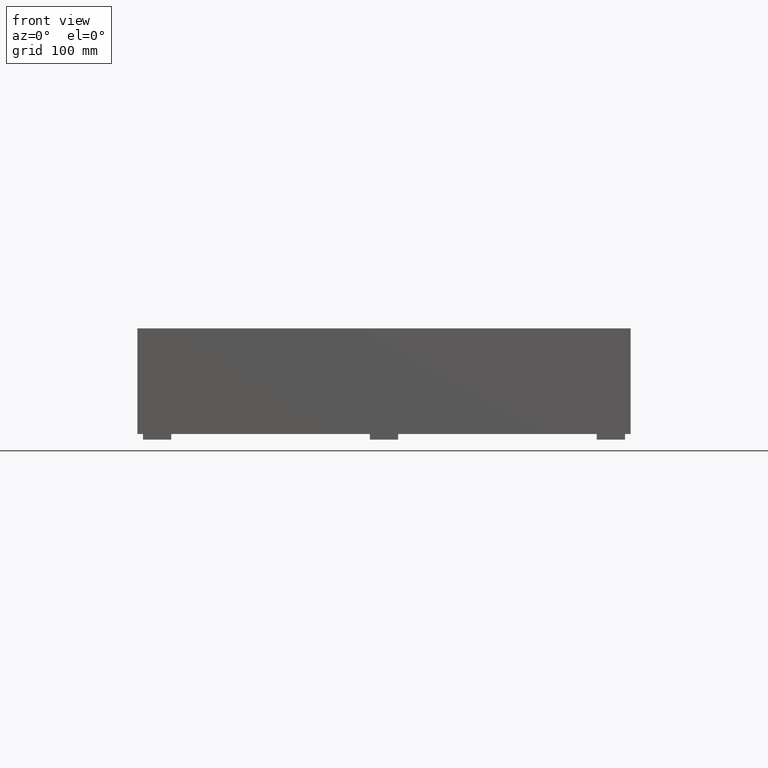
[diagram: clean part render]
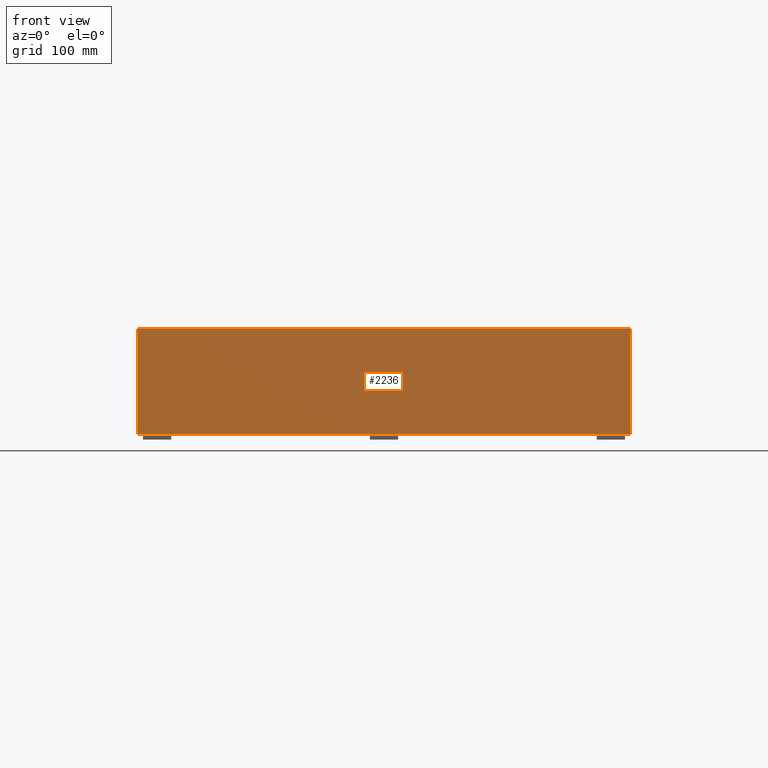
[diagram: same view with one face highlighted and labeled with its STEP entity id]
A machine part, front view. The second image highlights one B-rep face of the part: STEP entity #2236.
In plain terms, the highlighted planar face has unit normal (0, 1, 0).
Its self-contained STEP definition (entity closure, byte-faithful):
#822 = EDGE_LOOP ( 'NONE', ( #3189, #6427, #9630, #9685 ) ) ;
#835 = VERTEX_POINT ( 'NONE', #3883 ) ;
#1191 = DIRECTION ( 'NONE',  ( -1.000000000000000000, -0.0000000000000000000, -0.0000000000000000000 ) ) ;
#2060 = CARTESIAN_POINT ( 'NONE',  ( 0.0000000000000000000, 0.0000000000000000000, 0.0000000000000000000 ) ) ;
#2220 = CARTESIAN_POINT ( 'NONE',  ( 700.0000000000000000, 0.0000000000000000000, -150.0000000000000000 ) ) ;
#2236 = ADVANCED_FACE ( 'NONE', ( #6348 ), #9779, .F. ) ;
#2324 = AXIS2_PLACEMENT_3D ( 'NONE', #2060, #5495, #8924 ) ;
#2599 = EDGE_CURVE ( 'NONE', #11101, #6186, #3578, .T. ) ;
#2780 = CARTESIAN_POINT ( 'NONE',  ( 0.0000000000000000000, 0.0000000000000000000, 0.0000000000000000000 ) ) ;
#3144 = VERTEX_POINT ( 'NONE', #4828 ) ;
#3162 = CARTESIAN_POINT ( 'NONE',  ( 0.0000000000000000000, 0.0000000000000000000, 0.0000000000000000000 ) ) ;
#3189 = ORIENTED_EDGE ( 'NONE', *, *, #2599, .F. ) ;
#3578 = LINE ( 'NONE', #7022, #7532 ) ;
#3883 = CARTESIAN_POINT ( 'NONE',  ( 700.0000000000000000, 0.0000000000000000000, -150.0000000000000000 ) ) ;
#4828 = CARTESIAN_POINT ( 'NONE',  ( 700.0000000000000000, 0.0000000000000000000, 0.0000000000000000000 ) ) ;
#5481 = LINE ( 'NONE', #8910, #8762 ) ;
#5495 = DIRECTION ( 'NONE',  ( 0.0000000000000000000, 1.000000000000000000, 0.0000000000000000000 ) ) ;
#5660 = DIRECTION ( 'NONE',  ( -0.0000000000000000000, -0.0000000000000000000, -1.000000000000000000 ) ) ;
#5744 = VECTOR ( 'NONE', #5660, 1000.000000000000000 ) ;
#6186 = VERTEX_POINT ( 'NONE', #3162 ) ;
#6228 = DIRECTION ( 'NONE',  ( 1.000000000000000000, 0.0000000000000000000, 0.0000000000000000000 ) ) ;
#6348 = FACE_OUTER_BOUND ( 'NONE', #822, .T. ) ;
#6427 = ORIENTED_EDGE ( 'NONE', *, *, #7672, .F. ) ;
#7022 = CARTESIAN_POINT ( 'NONE',  ( 0.0000000000000000000, 0.0000000000000000000, -150.0000000000000000 ) ) ;
#7532 = VECTOR ( 'NONE', #10460, 1000.000000000000000 ) ;
#7672 = EDGE_CURVE ( 'NONE', #835, #11101, #5481, .T. ) ;
#8762 = VECTOR ( 'NONE', #1191, 1000.000000000000000 ) ;
#8910 = CARTESIAN_POINT ( 'NONE',  ( 0.0000000000000000000, 0.0000000000000000000, -150.0000000000000000 ) ) ;
#8924 = DIRECTION ( 'NONE',  ( 0.0000000000000000000, -0.0000000000000000000, 1.000000000000000000 ) ) ;
#9282 = CARTESIAN_POINT ( 'NONE',  ( 0.0000000000000000000, 0.0000000000000000000, -150.0000000000000000 ) ) ;
#9630 = ORIENTED_EDGE ( 'NONE', *, *, #10610, .F. ) ;
#9685 = ORIENTED_EDGE ( 'NONE', *, *, #10132, .F. ) ;
#9779 = PLANE ( 'NONE',  #2324 ) ;
#9935 = LINE ( 'NONE', #2220, #5744 ) ;
#10132 = EDGE_CURVE ( 'NONE', #6186, #3144, #10502, .T. ) ;
#10460 = DIRECTION ( 'NONE',  ( 0.0000000000000000000, 0.0000000000000000000, 1.000000000000000000 ) ) ;
#10502 = LINE ( 'NONE', #2780, #10589 ) ;
#10589 = VECTOR ( 'NONE', #6228, 1000.000000000000000 ) ;
#10610 = EDGE_CURVE ( 'NONE', #3144, #835, #9935, .T. ) ;
#11101 = VERTEX_POINT ( 'NONE', #9282 ) ;